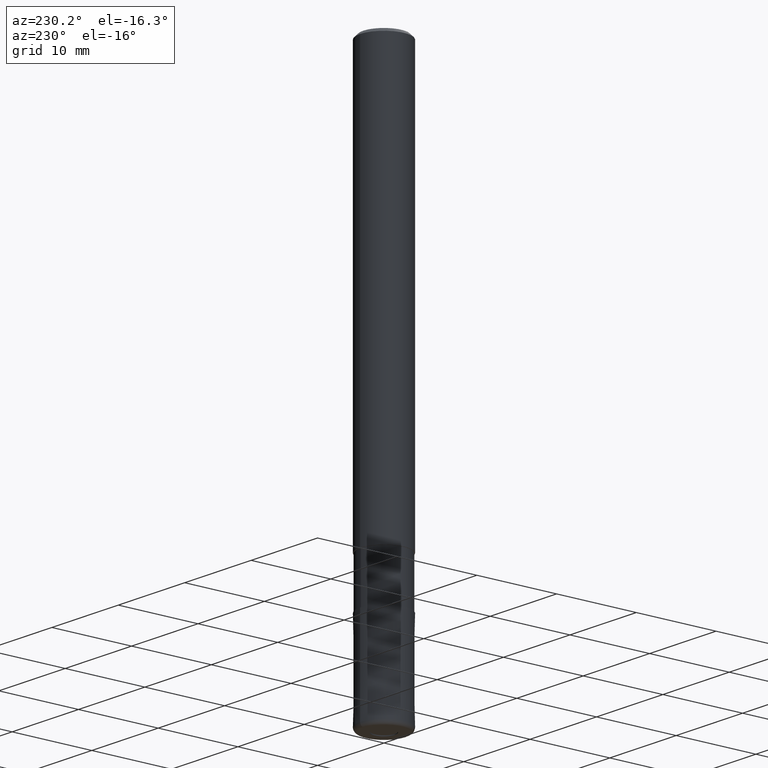
[diagram: clean part render]
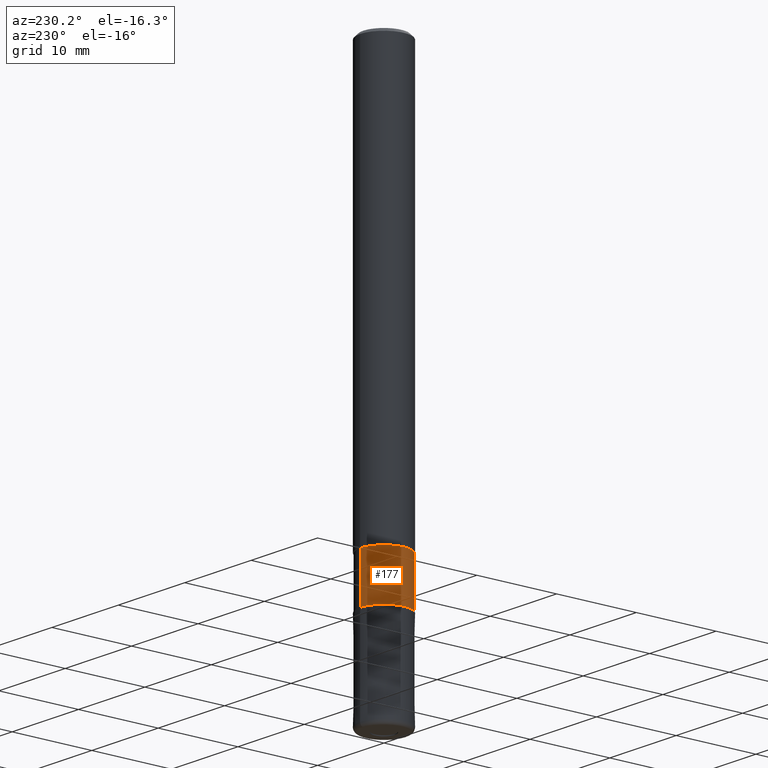
[diagram: same view with one face highlighted and labeled with its STEP entity id]
A machine part, auxiliary view. The second image highlights one B-rep face of the part: STEP entity #177.
In plain terms, the highlighted cylindrical surface (edge-blend (fillet) strip) has radius 2.9249 mm, axis along (-0, -0, 1).
Its self-contained STEP definition (entity closure, byte-faithful):
#175=VERTEX_POINT('',#373);
#177=ADVANCED_FACE('',(#375),#376,.T.);
#189=EDGE_CURVE('',#175,#267,#390,.T.);
#199=EDGE_CURVE('',#221,#261,#401,.T.);
#201=EDGE_CURVE('',#267,#221,#403,.T.);
#211=EDGE_CURVE('',#175,#261,#413,.T.);
#221=VERTEX_POINT('',#425);
#261=VERTEX_POINT('',#470);
#267=VERTEX_POINT('',#476);
#373=CARTESIAN_POINT('',(3.58191235461276E-016,-2.92495,-58.0));
#375=FACE_OUTER_BOUND('',#600,.T.);
#376=CYLINDRICAL_SURFACE('',#601,2.92495);
#390=LINE('',#619,#620);
#401=LINE('',#634,#635);
#403=CIRCLE('',#638,2.92495);
#413=CIRCLE('',#651,2.92495);
#425=CARTESIAN_POINT('',(0.0,2.92495,-52.0));
#470=CARTESIAN_POINT('',(0.0,2.92495,-58.0));
#476=CARTESIAN_POINT('',(3.58191235461276E-016,-2.92495,-52.0));
#600=EDGE_LOOP('',(#846,#847,#848,#849));
#601=AXIS2_PLACEMENT_3D('',#850,#851,#852);
#619=CARTESIAN_POINT('',(3.58191235461276E-016,-2.92495,-55.0));
#620=VECTOR('',#870,1.0);
#634=CARTESIAN_POINT('',(-3.58191235461276E-016,2.92495,-55.0));
#635=VECTOR('',#880,1.0);
#638=AXIS2_PLACEMENT_3D('',#881,#882,#883);
#651=AXIS2_PLACEMENT_3D('',#890,#891,#892);
#846=ORIENTED_EDGE('',*,*,#199,.T.);
#847=ORIENTED_EDGE('',*,*,#211,.F.);
#848=ORIENTED_EDGE('',*,*,#189,.T.);
#849=ORIENTED_EDGE('',*,*,#201,.T.);
#850=CARTESIAN_POINT('',(0.0,0.0,-55.0));
#851=DIRECTION('',(-0.0,-0.0,1.0));
#852=DIRECTION('',(0.0,1.0,0.0));
#870=DIRECTION('',(-0.0,-0.0,1.0));
#880=DIRECTION('',(0.0,0.0,-1.0));
#881=CARTESIAN_POINT('',(0.0,0.0,-52.0));
#882=DIRECTION('',(0.0,0.0,-1.0));
#883=DIRECTION('',(0.0,1.0,0.0));
#890=CARTESIAN_POINT('',(0.0,0.0,-58.0));
#891=DIRECTION('',(0.0,0.0,-1.0));
#892=DIRECTION('',(0.0,1.0,0.0));